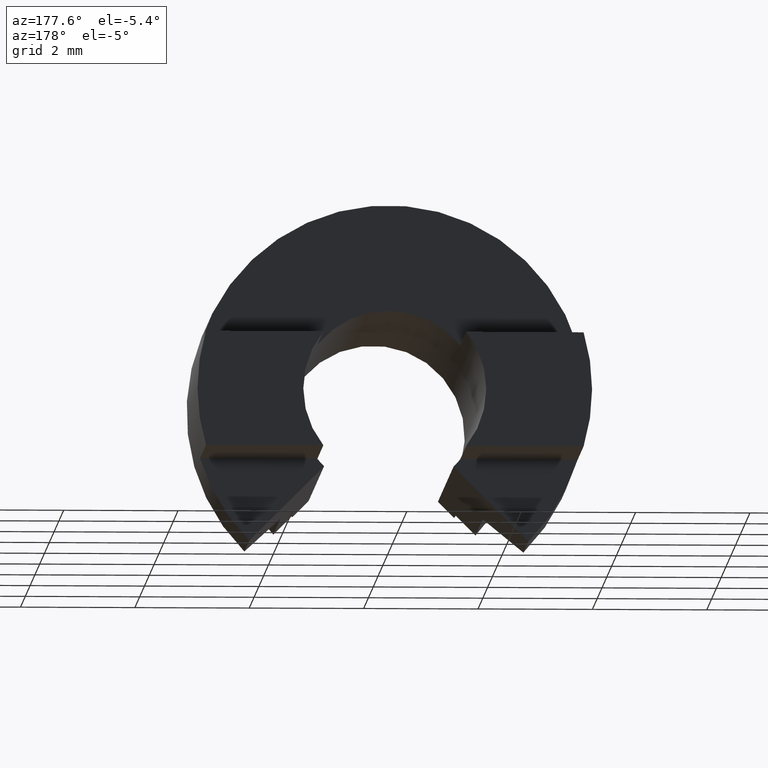
[diagram: clean part render]
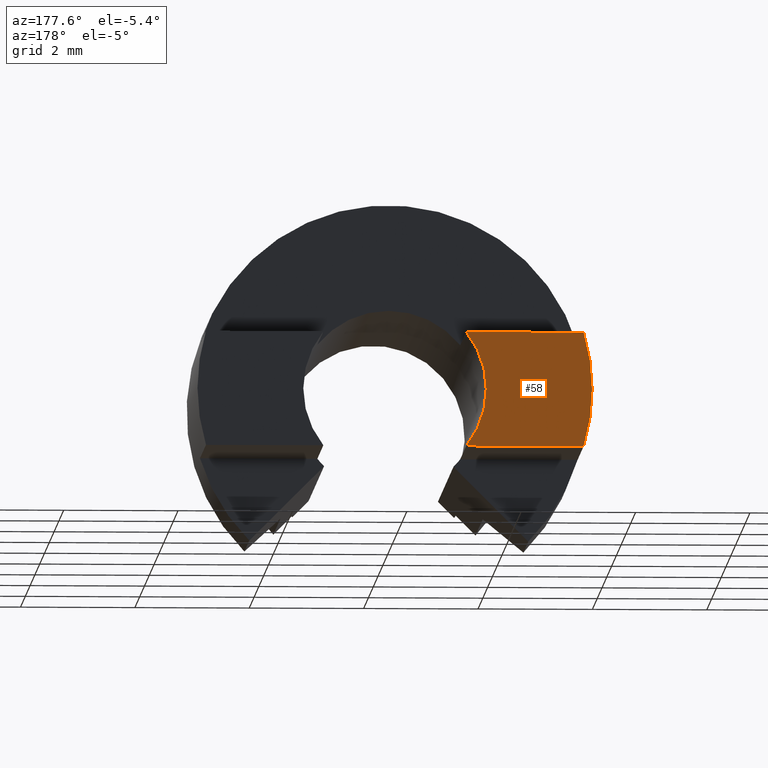
[diagram: same view with one face highlighted and labeled with its STEP entity id]
A machine part, auxiliary view. The second image highlights one B-rep face of the part: STEP entity #58.
In plain terms, the highlighted planar face has unit normal (0, -1, -0).
Its self-contained STEP definition (entity closure, byte-faithful):
#58 = ADVANCED_FACE( '', ( #119 ), #120, .F. );
#119 = FACE_OUTER_BOUND( '', #180, .T. );
#120 = PLANE( '', #181 );
#180 = EDGE_LOOP( '', ( #287, #288, #289, #290 ) );
#181 = AXIS2_PLACEMENT_3D( '', #291, #292, #293 );
#287 = ORIENTED_EDGE( '', *, *, #379, .F. );
#288 = ORIENTED_EDGE( '', *, *, #422, .T. );
#289 = ORIENTED_EDGE( '', *, *, #409, .F. );
#290 = ORIENTED_EDGE( '', *, *, #399, .F. );
#291 = CARTESIAN_POINT( '', ( -1.13137084989900, 8.99999999999998, 0.000000000000000 ) );
#292 = DIRECTION( '', ( 0.000000000000000, -1.00000000000000, -0.000000000000000 ) );
#293 = DIRECTION( '', ( 0.000000000000000, 0.000000000000000, -1.00000000000000 ) );
#379 = EDGE_CURVE( '', #445, #446, #447, .T. );
#399 = EDGE_CURVE( '', #446, #481, #482, .T. );
#409 = EDGE_CURVE( '', #481, #497, #498, .T. );
#422 = EDGE_CURVE( '', #445, #497, #516, .T. );
#445 = VERTEX_POINT( '', #543 );
#446 = VERTEX_POINT( '', #544 );
#447 = LINE( '', #545, #546 );
#481 = VERTEX_POINT( '', #591 );
#482 = CIRCLE( '', #592, 3.45000000000001 );
#497 = VERTEX_POINT( '', #611 );
#498 = LINE( '', #612, #613 );
#516 = CIRCLE( '', #639, 1.60000000000000 );
#543 = CARTESIAN_POINT( '', ( -1.24899959967968, 8.99999999999998, 1.00000000000000 ) );
#544 = CARTESIAN_POINT( '', ( -3.30189339621981, 8.99999999999998, 1.00000000000000 ) );
#545 = CARTESIAN_POINT( '', ( -1.13137084989900, 8.99999999999998, 1.00000000000000 ) );
#546 = VECTOR( '', #672, 1000.00000000000 );
#591 = CARTESIAN_POINT( '', ( -3.30189339621981, 8.99999999999998, -1.00000000000000 ) );
#592 = AXIS2_PLACEMENT_3D( '', #696, #697, #698 );
#611 = CARTESIAN_POINT( '', ( -1.24899959967968, 8.99999999999998, -1.00000000000000 ) );
#612 = CARTESIAN_POINT( '', ( -1.13137084989900, 8.99999999999998, -1.00000000000000 ) );
#613 = VECTOR( '', #715, 1000.00000000000 );
#639 = AXIS2_PLACEMENT_3D( '', #727, #728, #729 );
#672 = DIRECTION( '', ( -1.00000000000000, 0.000000000000000, 0.000000000000000 ) );
#696 = CARTESIAN_POINT( '', ( 0.000000000000000, 8.99999999999998, 0.000000000000000 ) );
#697 = DIRECTION( '', ( 0.000000000000000, -1.00000000000000, -0.000000000000000 ) );
#698 = DIRECTION( '', ( 0.000000000000000, 0.000000000000000, -1.00000000000000 ) );
#715 = DIRECTION( '', ( 1.00000000000000, 0.000000000000000, 0.000000000000000 ) );
#727 = CARTESIAN_POINT( '', ( 0.000000000000000, 8.99999999999998, 0.000000000000000 ) );
#728 = DIRECTION( '', ( 0.000000000000000, -1.00000000000000, -0.000000000000000 ) );
#729 = DIRECTION( '', ( -1.00000000000000, 0.000000000000000, -6.12303176911189E-017 ) );